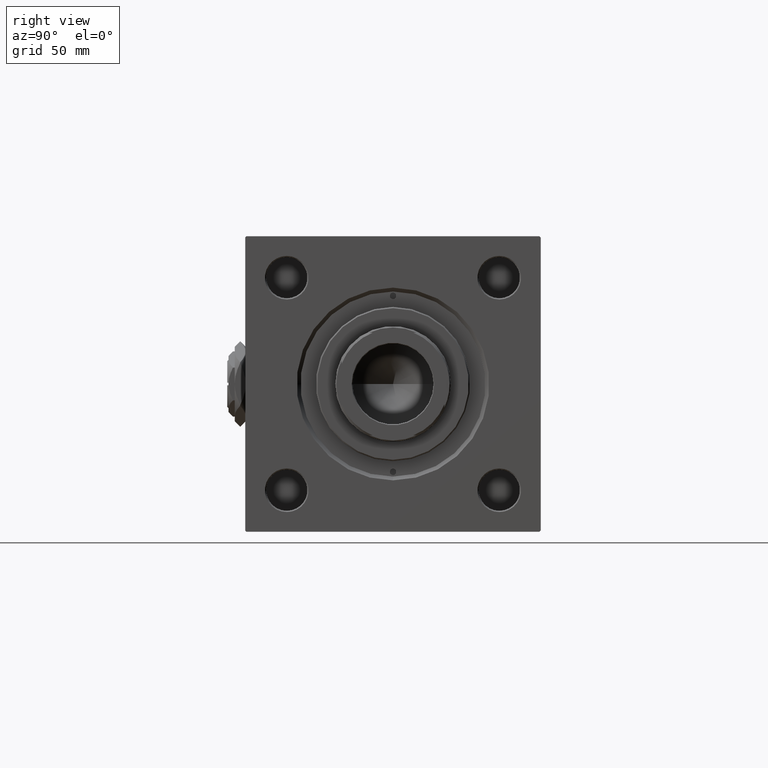
[diagram: clean part render]
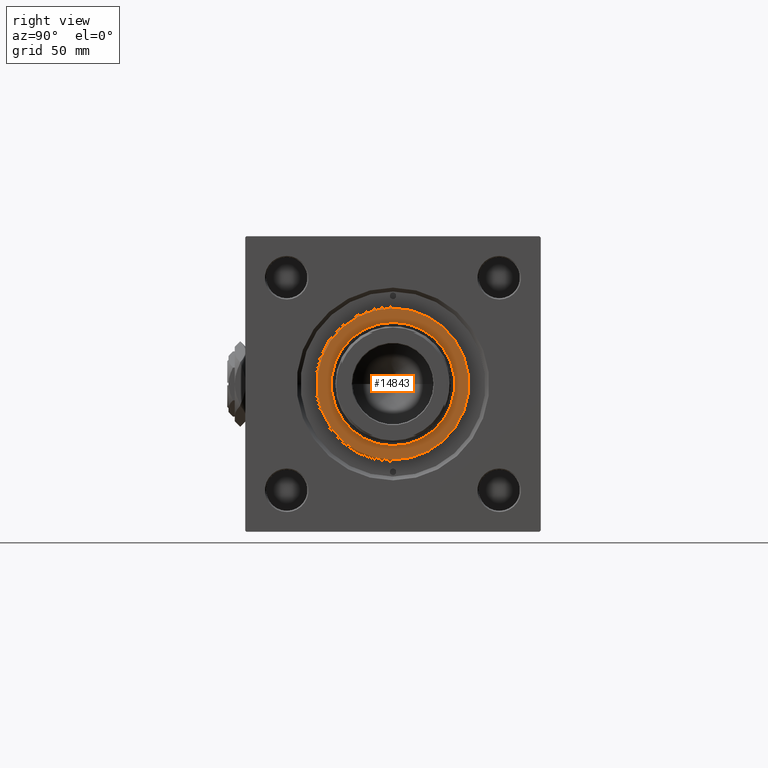
[diagram: same view with one face highlighted and labeled with its STEP entity id]
A machine part, right view. The second image highlights one B-rep face of the part: STEP entity #14843.
In plain terms, the highlighted planar face has unit normal (1, 0, 0).
Its self-contained STEP definition (entity closure, byte-faithful):
#3040 = CARTESIAN_POINT ( 'NONE',  ( 0.000000000000000000, 0.000000000000000000, 37.69999999999999574 ) ) ;
#9091 = AXIS2_PLACEMENT_3D ( 'NONE', #45011, #44501, #28450 ) ;
#10272 = EDGE_CURVE ( 'NONE', #19109, #40012, #48344, .T. ) ;
#10527 = DIRECTION ( 'NONE',  ( 1.000000000000000000, 0.000000000000000000, 0.000000000000000000 ) ) ;
#10976 = EDGE_LOOP ( 'NONE', ( #22330, #44220 ) ) ;
#12224 = ORIENTED_EDGE ( 'NONE', *, *, #24960, .F. ) ;
#13088 = DIRECTION ( 'NONE',  ( 0.000000000000000000, 0.000000000000000000, 1.000000000000000000 ) ) ;
#13119 = VERTEX_POINT ( 'NONE', #32421 ) ;
#14115 = CARTESIAN_POINT ( 'NONE',  ( -24.00000000000000355, 2.939152317953648289E-15, 37.69999999999999574 ) ) ;
#14281 = EDGE_CURVE ( 'NONE', #44975, #13119, #52759, .T. ) ;
#14843 = ADVANCED_FACE ( 'NONE', ( #47964, #47688 ), #35912, .T. ) ;
#17794 = AXIS2_PLACEMENT_3D ( 'NONE', #21330, #20526, #24533 ) ;
#19109 = VERTEX_POINT ( 'NONE', #29759 ) ;
#20494 = EDGE_CURVE ( 'NONE', #13119, #44975, #47882, .T. ) ;
#20526 = DIRECTION ( 'NONE',  ( 0.000000000000000000, 0.000000000000000000, 1.000000000000000000 ) ) ;
#21330 = CARTESIAN_POINT ( 'NONE',  ( 0.000000000000000000, 0.000000000000000000, 37.69999999999999574 ) ) ;
#22330 = ORIENTED_EDGE ( 'NONE', *, *, #20494, .T. ) ;
#23081 = EDGE_LOOP ( 'NONE', ( #26103, #12224 ) ) ;
#23120 = DIRECTION ( 'NONE',  ( 0.000000000000000000, 0.000000000000000000, 1.000000000000000000 ) ) ;
#23688 = CIRCLE ( 'NONE', #43274, 24.00000000000000355 ) ;
#24533 = DIRECTION ( 'NONE',  ( 1.000000000000000000, 0.000000000000000000, 0.000000000000000000 ) ) ;
#24960 = EDGE_CURVE ( 'NONE', #40012, #19109, #23688, .T. ) ;
#25128 = CARTESIAN_POINT ( 'NONE',  ( 0.000000000000000000, 0.000000000000000000, 37.69999999999999574 ) ) ;
#26103 = ORIENTED_EDGE ( 'NONE', *, *, #10272, .F. ) ;
#28450 = DIRECTION ( 'NONE',  ( 1.000000000000000000, 0.000000000000000000, 0.000000000000000000 ) ) ;
#29759 = CARTESIAN_POINT ( 'NONE',  ( 24.00000000000000355, 0.000000000000000000, 37.69999999999999574 ) ) ;
#29894 = CARTESIAN_POINT ( 'NONE',  ( 29.50000000000000000, 3.643324227463375391E-15, 37.69999999999999574 ) ) ;
#31622 = DIRECTION ( 'NONE',  ( 0.000000000000000000, 0.000000000000000000, 1.000000000000000000 ) ) ;
#32421 = CARTESIAN_POINT ( 'NONE',  ( -29.50000000000000000, 0.000000000000000000, 37.69999999999999574 ) ) ;
#35379 = CARTESIAN_POINT ( 'NONE',  ( 0.000000000000000000, 0.000000000000000000, 37.69999999999999574 ) ) ;
#35912 = PLANE ( 'NONE',  #38297 ) ;
#35919 = AXIS2_PLACEMENT_3D ( 'NONE', #25128, #13088, #37934 ) ;
#37934 = DIRECTION ( 'NONE',  ( 1.000000000000000000, 0.000000000000000000, 0.000000000000000000 ) ) ;
#38297 = AXIS2_PLACEMENT_3D ( 'NONE', #35379, #23120, #39392 ) ;
#39392 = DIRECTION ( 'NONE',  ( 1.000000000000000000, 0.000000000000000000, -0.000000000000000000 ) ) ;
#40012 = VERTEX_POINT ( 'NONE', #14115 ) ;
#43274 = AXIS2_PLACEMENT_3D ( 'NONE', #3040, #31622, #10527 ) ;
#44220 = ORIENTED_EDGE ( 'NONE', *, *, #14281, .T. ) ;
#44501 = DIRECTION ( 'NONE',  ( 0.000000000000000000, 0.000000000000000000, 1.000000000000000000 ) ) ;
#44975 = VERTEX_POINT ( 'NONE', #29894 ) ;
#45011 = CARTESIAN_POINT ( 'NONE',  ( 0.000000000000000000, 0.000000000000000000, 37.69999999999999574 ) ) ;
#47688 = FACE_OUTER_BOUND ( 'NONE', #10976, .T. ) ;
#47882 = CIRCLE ( 'NONE', #35919, 29.50000000000000000 ) ;
#47964 = FACE_BOUND ( 'NONE', #23081, .T. ) ;
#48344 = CIRCLE ( 'NONE', #9091, 24.00000000000000355 ) ;
#52759 = CIRCLE ( 'NONE', #17794, 29.50000000000000000 ) ;